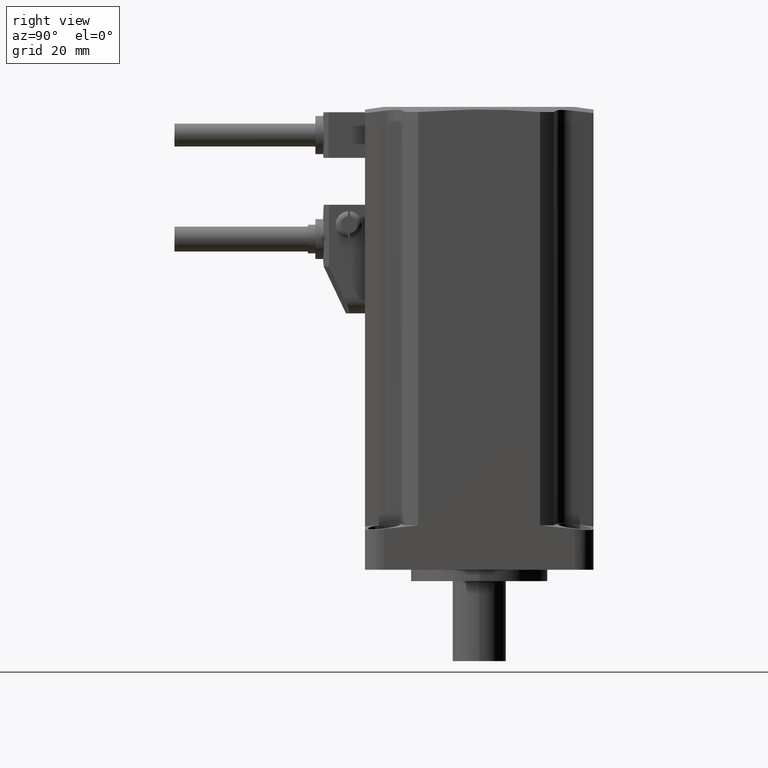
[diagram: clean part render]
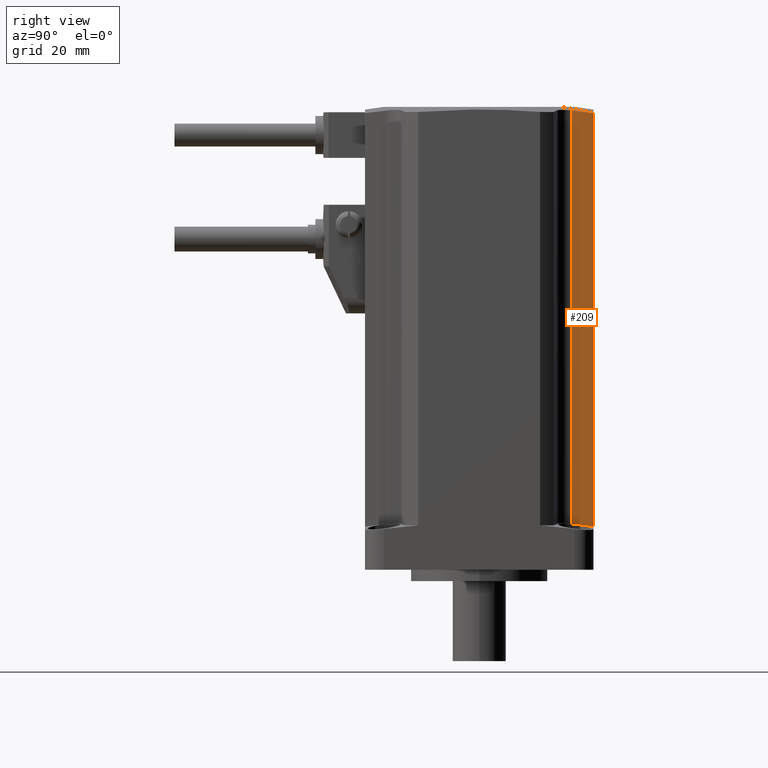
[diagram: same view with one face highlighted and labeled with its STEP entity id]
A machine part, right view. The second image highlights one B-rep face of the part: STEP entity #209.
In plain terms, the highlighted planar face has unit normal (-0.989, -0.1479, 0).
Its self-contained STEP definition (entity closure, byte-faithful):
#207 = ORIENTED_EDGE ( 'NONE', *, *, #1643, .F. ) ;
#209 = ADVANCED_FACE ( 'NONE', ( #4206 ), #367, .F. ) ;
#367 = PLANE ( 'NONE',  #3448 ) ;
#391 = CARTESIAN_POINT ( 'NONE',  ( 19.50000000000000355, 29.99999999999999645, 12.99799999999999578 ) ) ;
#440 = B_SPLINE_CURVE_WITH_KNOTS ( 'NONE', 3,
 ( #3209, #2846, #2405, #3162 ),
 .UNSPECIFIED., .F., .F.,
 ( 4, 4 ),
 ( 1.440969542111313559E-17, 0.005800666620432206808 ),
 .UNSPECIFIED. ) ;
#448 = VERTEX_POINT ( 'NONE', #1057 ) ;
#465 = VERTEX_POINT ( 'NONE', #4484 ) ;
#821 = ORIENTED_EDGE ( 'NONE', *, *, #2568, .F. ) ;
#950 = VECTOR ( 'NONE', #4139, 1000.000000000000000 ) ;
#1057 = CARTESIAN_POINT ( 'NONE',  ( 19.50000000000000000, 29.99999999999998224, 11.32514391544359889 ) ) ;
#1193 = DIRECTION ( 'NONE',  ( -0.9890019927199266148, -0.1479021919919180084, 0.0000000000000000000 ) ) ;
#1265 = CARTESIAN_POINT ( 'NONE',  ( 20.06729085164547755, 26.20660265292212543, 120.3356211554518893 ) ) ;
#1567 = ORIENTED_EDGE ( 'NONE', *, *, #4896, .F. ) ;
#1643 = EDGE_CURVE ( 'NONE', #3225, #465, #2762, .T. ) ;
#1675 = CARTESIAN_POINT ( 'NONE',  ( 20.35169063421636437, 24.30485969763791942, 120.5403774523732210 ) ) ;
#1767 = LINE ( 'NONE', #4855, #4719 ) ;
#1790 = EDGE_LOOP ( 'NONE', ( #821, #2293, #207, #1567 ) ) ;
#1887 = CARTESIAN_POINT ( 'NONE',  ( 20.35169063421635371, 24.30485969763789811, 12.99799999999999578 ) ) ;
#1922 = EDGE_CURVE ( 'NONE', #448, #465, #1767, .T. ) ;
#2293 = ORIENTED_EDGE ( 'NONE', *, *, #1922, .T. ) ;
#2405 = CARTESIAN_POINT ( 'NONE',  ( 20.06729085164545623, 26.20660265292218938, 11.81876662836974035 ) ) ;
#2440 = CARTESIAN_POINT ( 'NONE',  ( 19.49999999999999645, 30.00000000000000000, 119.8419984425273128 ) ) ;
#2568 = EDGE_CURVE ( 'NONE', #448, #4120, #440, .T. ) ;
#2645 = DIRECTION ( 'NONE',  ( 0.1479021919919180084, -0.9890019927199266148, 0.0000000000000000000 ) ) ;
#2762 = B_SPLINE_CURVE_WITH_KNOTS ( 'NONE', 3,
 ( #3511, #1265, #4752, #2440 ),
 .UNSPECIFIED., .F., .F.,
 ( 4, 4 ),
 ( 0.0000000000000000000, 0.005800666620432008182 ),
 .UNSPECIFIED. ) ;
#2846 = CARTESIAN_POINT ( 'NONE',  ( 19.78339397357333596, 28.10498275370951404, 11.58597362508716877 ) ) ;
#3162 = CARTESIAN_POINT ( 'NONE',  ( 20.35169063421633240, 24.30485969763790521, 12.02352292529136335 ) ) ;
#3209 = CARTESIAN_POINT ( 'NONE',  ( 19.50000000000000000, 29.99999999999998224, 11.32514391544359889 ) ) ;
#3225 = VERTEX_POINT ( 'NONE', #1675 ) ;
#3387 = CARTESIAN_POINT ( 'NONE',  ( 20.35169063421633240, 24.30485969763790521, 12.02352292529136335 ) ) ;
#3448 = AXIS2_PLACEMENT_3D ( 'NONE', #391, #1193, #2645 ) ;
#3511 = CARTESIAN_POINT ( 'NONE',  ( 20.35169063421636437, 24.30485969763791942, 120.5403774523732210 ) ) ;
#4093 = DIRECTION ( 'NONE',  ( -0.0000000000000000000, 0.0000000000000000000, 1.000000000000000000 ) ) ;
#4120 = VERTEX_POINT ( 'NONE', #3387 ) ;
#4139 = DIRECTION ( 'NONE',  ( 0.0000000000000000000, 0.0000000000000000000, 1.000000000000000000 ) ) ;
#4206 = FACE_OUTER_BOUND ( 'NONE', #1790, .T. ) ;
#4484 = CARTESIAN_POINT ( 'NONE',  ( 19.49999999999999645, 30.00000000000000000, 119.8419984425273128 ) ) ;
#4719 = VECTOR ( 'NONE', #4093, 1000.000000000000000 ) ;
#4752 = CARTESIAN_POINT ( 'NONE',  ( 19.78339397357335372, 28.10498275370948562, 120.1028281521698915 ) ) ;
#4855 = CARTESIAN_POINT ( 'NONE',  ( 19.49999999999999645, 29.99999999999999645, 12.99799999999999578 ) ) ;
#4896 = EDGE_CURVE ( 'NONE', #4120, #3225, #4908, .T. ) ;
#4908 = LINE ( 'NONE', #1887, #950 ) ;